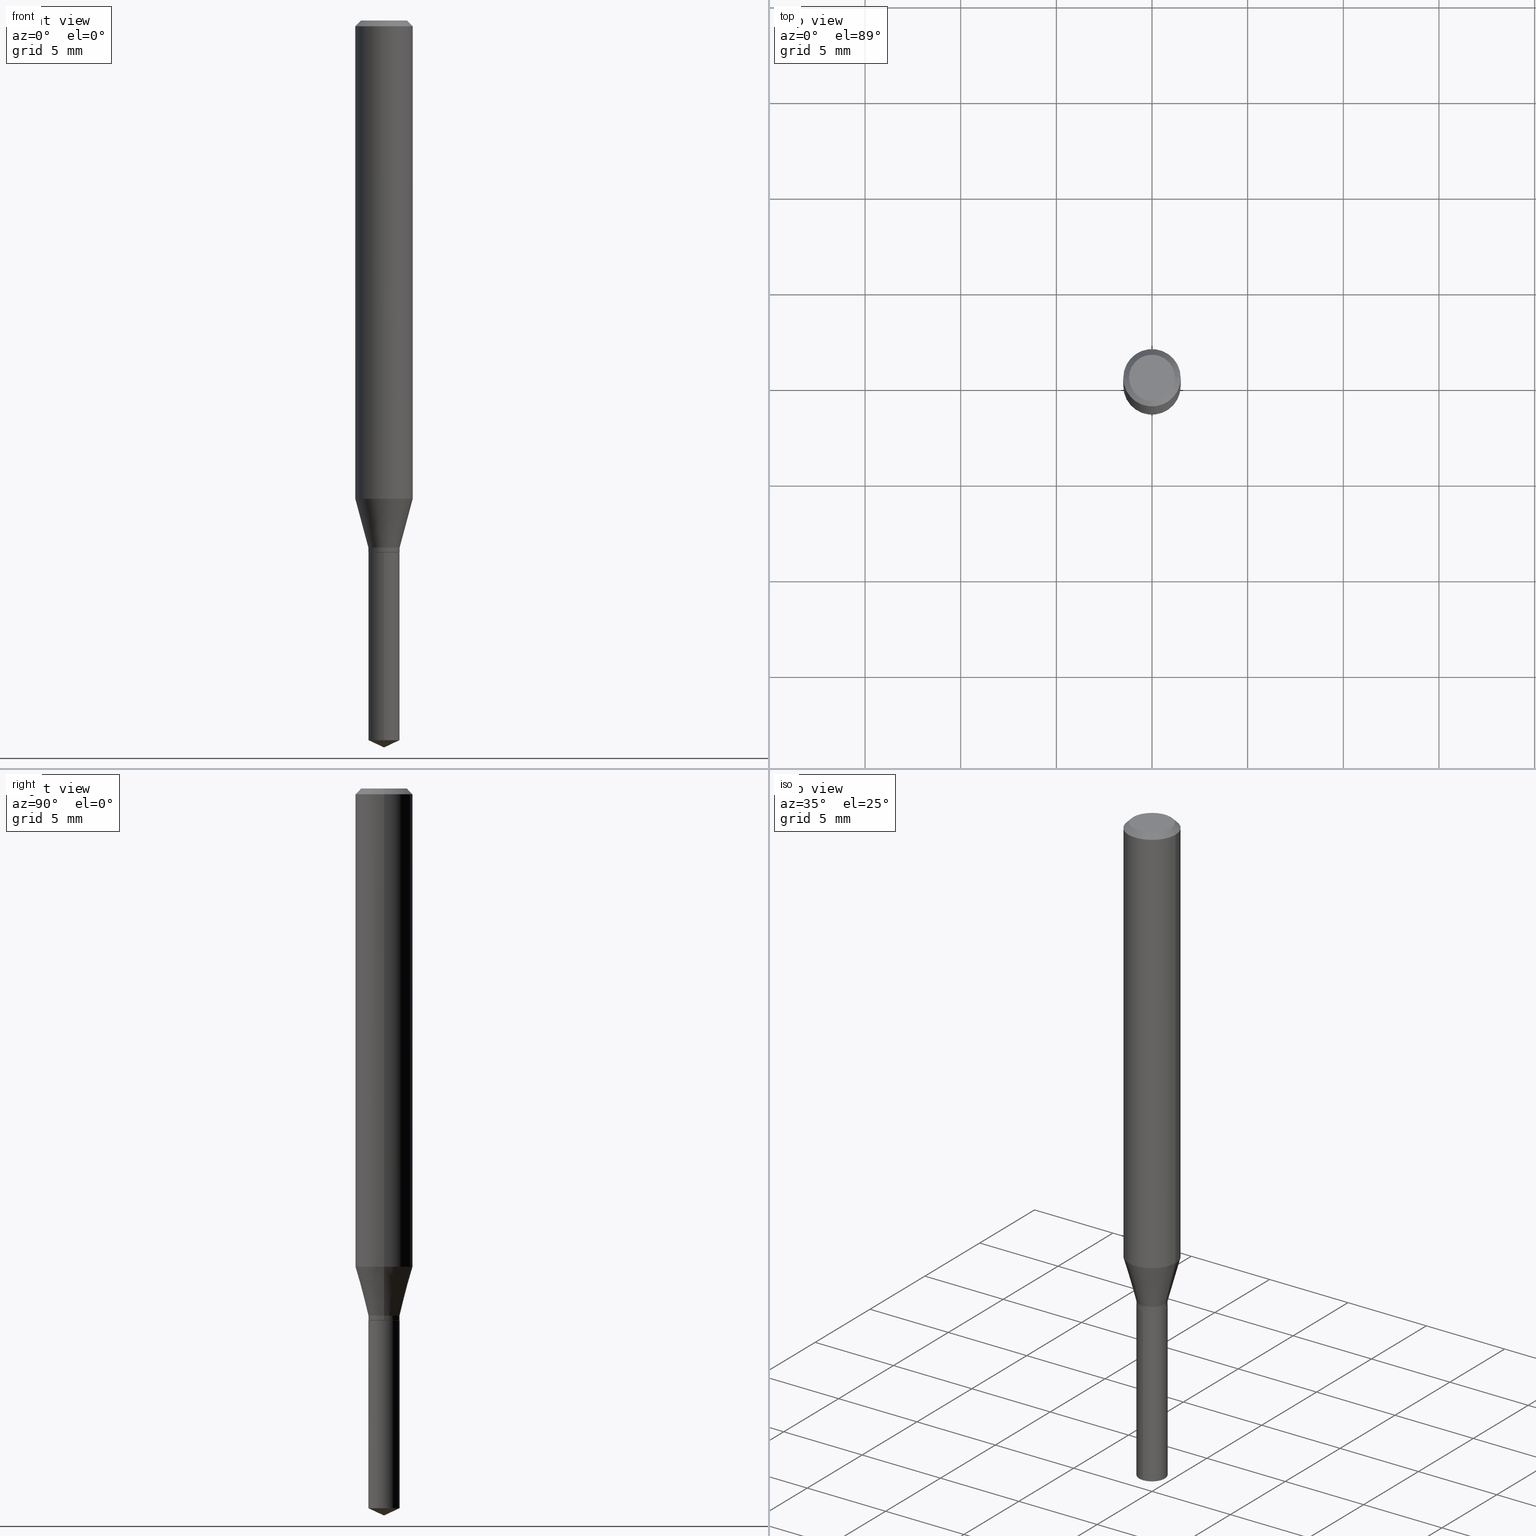
[diagram: canonical four-view strip — front | top / right | iso, engineering-drawing reading convention]
A machine part, canonical four-view strip (front | top / right | iso — engineering-drawing reading convention). The complete STEP part file that produces these views, byte-faithful:
ISO-10303-21;
HEADER;
FILE_DESCRIPTION (( 'STEP AP203' ),
    '1' );
FILE_NAME ('07900.STEP',
    '2024-04-24T05:42:37',
    ( '' ),
    ( '' ),
    'SwSTEP 2.0',
    'SolidWorks 2023',
    '' );
FILE_SCHEMA (( 'CONFIG_CONTROL_DESIGN' ));
ENDSEC;

DATA;
#1 = PERSON_AND_ORGANIZATION ( #28, #442 ) ;
#2 = APPLICATION_PROTOCOL_DEFINITION ( 'international standard', 'config_control_design', 1994, #230 ) ;
#3 = VERTEX_POINT ( 'NONE', #176 ) ;
#4 = VECTOR ( 'NONE', #262, 39.37007874015748143 ) ;
#5 = CC_DESIGN_APPROVAL ( #411, ( #26 ) ) ;
#6 = EDGE_LOOP ( 'NONE', ( #171, #174 ) ) ;
#7 = CARTESIAN_POINT ( 'NONE',  ( -0.03159999999999999615, -3.594245593689520187E-15, -1.094500000000000028 ) ) ;
#8 = ORIENTED_EDGE ( 'NONE', *, *, #32, .T. ) ;
#9 = ORIENTED_EDGE ( 'NONE', *, *, #295, .F. ) ;
#10 = APPROVAL_DATE_TIME ( #356, #143 ) ;
#11 = AXIS2_PLACEMENT_3D ( 'NONE', #386, #169, #316 ) ;
#12 = CARTESIAN_POINT ( 'NONE',  ( -0.03209999999999999659, -3.575710126423672121E-15, -1.084899999999999975 ) ) ;
#13 = CC_DESIGN_APPROVAL ( #143, ( #124 ) ) ;
#14 = MANIFOLD_SOLID_BREP ( 'Body-Move/Copy2[1]', #234 ) ;
#15 = DIRECTION ( 'NONE',  ( -2.445468806185136597E-29, 3.491481338843145583E-15, 1.000000000000000000 ) ) ;
#16 = LINE ( 'NONE', #327, #204 ) ;
#17 = ORIENTED_EDGE ( 'NONE', *, *, #416, .T. ) ;
#18 = APPROVAL_ROLE ( '' ) ;
#19 = FACE_OUTER_BOUND ( 'NONE', #241, .T. ) ;
#20 = DIRECTION ( 'NONE',  ( 1.000000000000000000, -6.982962677686263555E-15, 0.000000000000000000 ) ) ;
#21 = VECTOR ( 'NONE', #406, 39.37007874015748854 ) ;
#22 = CYLINDRICAL_SURFACE ( 'NONE', #388, 0.05905000000000006077 ) ;
#23 = AXIS2_PLACEMENT_3D ( 'NONE', #142, #59, #362 ) ;
#24 = LOCAL_TIME ( 1, 42, 37.00000000000000000, #98 ) ;
#25 = CARTESIAN_POINT ( 'NONE',  ( 0.05905000000000006077, -4.123439461173744764E-16, 2.879382386107503023E-30 ) ) ;
#26 = PRODUCT_DEFINITION ( 'UNKNOWN', '', #251, #220 ) ;
#27 = DIRECTION ( 'NONE',  ( -2.445468806185136877E-29, 3.491481338843145188E-15, 1.000000000000000000 ) ) ;
#28 = PERSON ( 'UNSPECIFIED', 'UNSPECIFIED', 'UNSPECIFIED', ('UNSPECIFIED'), ('UNSPECIFIED'), ('UNSPECIFIED') ) ;
#29 = PLANE ( 'NONE',  #70 ) ;
#30 = CIRCLE ( 'NONE', #309, 0.03209999999999999659 ) ;
#31 = LOCAL_TIME ( 1, 42, 37.00000000000000000, #402 ) ;
#32 = EDGE_CURVE ( 'NONE', #361, #353, #458, .T. ) ;
#33 = DIRECTION ( 'NONE',  ( -6.982962677686267499E-15, -1.000000000000000000, 3.520397390770466886E-15 ) ) ;
#34 = CARTESIAN_POINT ( 'NONE',  ( -2.241531019537023721E-16, -0.03210000000000381992, -1.094499999999999806 ) ) ;
#35 = CARTESIAN_POINT ( 'NONE',  ( 0.000000000000000000, 0.000000000000000000, 0.000000000000000000 ) ) ;
#36 = ORIENTED_EDGE ( 'NONE', *, *, #314, .T. ) ;
#37 = CARTESIAN_POINT ( 'NONE',  ( 2.407126865030695600E-29, -3.436739208541926354E-15, -0.9843212307360184044 ) ) ;
#38 = DIRECTION ( 'NONE',  ( 1.000000000000000000, -6.982962677686266711E-15, 0.000000000000000000 ) ) ;
#39 = AXIS2_PLACEMENT_3D ( 'NONE', #324, #107, #434 ) ;
#40 = ORIENTED_EDGE ( 'NONE', *, *, #395, .F. ) ;
#41 = APPROVAL_STATUS ( 'not_yet_approved' ) ;
#42 = ADVANCED_BREP_SHAPE_REPRESENTATION ( '07900', ( #14, #188, #451 ), #164 ) ;
#43 = ORIENTED_EDGE ( 'NONE', *, *, #300, .T. ) ;
#44 = CARTESIAN_POINT ( 'NONE',  ( -0.05905000000000011628, -3.017163723075586861E-15, -0.9843212307360184044 ) ) ;
#45 = DIRECTION ( 'NONE',  ( 6.982962677686265922E-15, 1.000000000000000000, -3.491479321953280158E-15 ) ) ;
#46 = MECHANICAL_CONTEXT ( 'NONE', #340, 'mechanical' ) ;
#47 = AXIS2_PLACEMENT_3D ( 'NONE', #341, #147, #377 ) ;
#48 = APPROVAL_PERSON_ORGANIZATION ( #1, #411, #197 ) ;
#49 = EDGE_CURVE ( 'NONE', #467, #3, #471, .T. ) ;
#50 = DIRECTION ( 'NONE',  ( -6.982962677686265133E-15, -1.000000000000000000, 4.255214943402279650E-15 ) ) ;
#51 = PRODUCT_RELATED_PRODUCT_CATEGORY ( 'detail', '', ( #153 ) ) ;
#52 = EDGE_LOOP ( 'NONE', ( #246, #43, #125, #40 ) ) ;
#53 = PLANE ( 'NONE',  #480 ) ;
#54 = EDGE_CURVE ( 'NONE', #315, #248, #317, .T. ) ;
#55 = ORIENTED_EDGE ( 'NONE', *, *, #416, .F. ) ;
#56 = CALENDAR_DATE ( 2024, 24, 4 ) ;
#57 = CIRCLE ( 'NONE', #47, 0.03209999999999999659 ) ;
#58 = CONICAL_SURFACE ( 'NONE', #460, 84.42940631927402251, 1.134464013796314452 ) ;
#59 = DIRECTION ( 'NONE',  ( -2.445470214571802116E-29, 3.491479321953280158E-15, 1.000000000000000000 ) ) ;
#60 = CC_DESIGN_SECURITY_CLASSIFICATION ( #124, ( #251 ) ) ;
#61 = CC_DESIGN_PERSON_AND_ORGANIZATION_ASSIGNMENT ( #67, #132, ( #251 ) ) ;
#62 = DIRECTION ( 'NONE',  ( -2.445468806185136597E-29, 3.491481338843145583E-15, 1.000000000000000000 ) ) ;
#63 = DIRECTION ( 'NONE',  ( -2.445468806185136597E-29, 3.491481338843145583E-15, 1.000000000000000000 ) ) ;
#64 = ORIENTED_EDGE ( 'NONE', *, *, #198, .T. ) ;
#65 = DATE_AND_TIME ( #56, #31 ) ;
#66 = CARTESIAN_POINT ( 'NONE',  ( -0.05904999999999999832, 3.711095515056362547E-16, -0.01181000000000007218 ) ) ;
#67 = PERSON_AND_ORGANIZATION ( #28, #442 ) ;
#68 = EDGE_CURVE ( 'NONE', #459, #112, #152, .T. ) ;
#69 = DIRECTION ( 'NONE',  ( 1.000000000000000000, -6.982962677686263555E-15, 0.000000000000000000 ) ) ;
#70 = AXIS2_PLACEMENT_3D ( 'NONE', #190, #231, #379 ) ;
#71 = DIRECTION ( 'NONE',  ( 2.445468806185136597E-29, -3.491481338843145583E-15, -1.000000000000000000 ) ) ;
#72 = FACE_OUTER_BOUND ( 'NONE', #393, .T. ) ;
#73 = EDGE_CURVE ( 'NONE', #91, #254, #413, .T. ) ;
#74 = CARTESIAN_POINT ( 'NONE',  ( 2.280842181790283737E-16, 0.03209999999999482712, -1.481131524173224578 ) ) ;
#75 = CIRCLE ( 'NONE', #351, 0.05905000000000011628 ) ;
#76 = CC_DESIGN_DATE_AND_TIME_ASSIGNMENT ( #65, #216, ( #124 ) ) ;
#77 = CARTESIAN_POINT ( 'NONE',  ( 2.407126865030695600E-29, -3.436739208541926354E-15, -0.9843212307360184044 ) ) ;
#78 = DIRECTION ( 'NONE',  ( -1.000000000000000000, 6.982962677686266711E-15, 0.000000000000000000 ) ) ;
#79 = DIRECTION ( 'NONE',  ( 1.000000000000000000, -6.982962677686266711E-15, 4.876176775795935793E-29 ) ) ;
#80 = VERTEX_POINT ( 'NONE', #252 ) ;
#81 = CARTESIAN_POINT ( 'NONE',  ( -2.241531019537023721E-16, -0.03210000000000381992, -1.094499999999999806 ) ) ;
#82 = APPROVAL ( #162, 'UNSPECIFIED' ) ;
#83 = CONICAL_SURFACE ( 'NONE', #358, 0.03209999999999999659, 0.2617993877991498519 ) ;
#84 = AXIS2_PLACEMENT_3D ( 'NONE', #419, #312, #465 ) ;
#85 = VERTEX_POINT ( 'NONE', #306 ) ;
#86 = PERSON_AND_ORGANIZATION ( #28, #442 ) ;
#87 = ORIENTED_EDGE ( 'NONE', *, *, #219, .T. ) ;
#88 = DIRECTION ( 'NONE',  ( -2.445470214571802396E-29, 3.491479321953280158E-15, 1.000000000000000000 ) ) ;
#89 = CARTESIAN_POINT ( 'NONE',  ( -0.03209999999999999659, -3.559823886331936833E-15, -1.084899999999999975 ) ) ;
#90 = EDGE_CURVE ( 'NONE', #478, #3, #137, .T. ) ;
#91 = VERTEX_POINT ( 'NONE', #120 ) ;
#92 = DIRECTION ( 'NONE',  ( 0.000000000000000000, 0.000000000000000000, 1.000000000000000000 ) ) ;
#93 = DIRECTION ( 'NONE',  ( 1.000000000000000000, -6.982962677686263555E-15, 0.000000000000000000 ) ) ;
#94 = ADVANCED_FACE ( 'NONE', ( #273 ), #382, .T. ) ;
#95 = CIRCLE ( 'NONE', #186, 0.03209999999999998965 ) ;
#96 = CC_DESIGN_APPROVAL ( #82, ( #251 ) ) ;
#97 =( NAMED_UNIT ( * ) PLANE_ANGLE_UNIT ( ) SI_UNIT ( $, .RADIAN. ) );
#98 = COORDINATED_UNIVERSAL_TIME_OFFSET ( 5, 0, .BEHIND. ) ;
#99 = PERSON_AND_ORGANIZATION_ROLE ( 'design_supplier' ) ;
#100 = DIRECTION ( 'NONE',  ( 1.000000000000000000, -6.982962677686263555E-15, 0.000000000000000000 ) ) ;
#101 = ORIENTED_EDGE ( 'NONE', *, *, #247, .T. ) ;
#102 = CONICAL_SURFACE ( 'NONE', #84, 84.42940631927402251, 1.134464013796314452 ) ;
#103 = FACE_OUTER_BOUND ( 'NONE', #223, .T. ) ;
#104 = ORIENTED_EDGE ( 'NONE', *, *, #392, .T. ) ;
#105 = COORDINATED_UNIVERSAL_TIME_OFFSET ( 5, 0, .BEHIND. ) ;
#106 = CARTESIAN_POINT ( 'NONE',  ( 3.622061484749750014E-29, -5.171342297229916227E-15, -1.481131524173224578 ) ) ;
#107 = DIRECTION ( 'NONE',  ( -2.445468806185136597E-29, 3.491481338843145583E-15, 1.000000000000000000 ) ) ;
#108 = PRODUCT_DEFINITION_SHAPE ( 'NONE', 'NONE',  #26 ) ;
#109 = AXIS2_PLACEMENT_3D ( 'NONE', #192, #281, #38 ) ;
#110 = FACE_OUTER_BOUND ( 'NONE', #199, .T. ) ;
#111 = VECTOR ( 'NONE', #113, 39.37007874015748143 ) ;
#112 = VERTEX_POINT ( 'NONE', #310 ) ;
#113 = DIRECTION ( 'NONE',  ( -2.445470214571802396E-29, 3.491479321953280158E-15, 1.000000000000000000 ) ) ;
#114 = CARTESIAN_POINT ( 'NONE',  ( -9.261968845786000133E-28, 1.322362114038720264E-13, 37.87397874015748300 ) ) ;
#115 = DIRECTION ( 'NONE',  ( -2.445470214571802116E-29, 3.491479321953280158E-15, 1.000000000000000000 ) ) ;
#116 = DIRECTION ( 'NONE',  ( -2.445468806185136597E-29, 3.491481338843145583E-15, 1.000000000000000000 ) ) ;
#117 = DIRECTION ( 'NONE',  ( -6.982962677686265133E-15, -1.000000000000000000, 4.255214943402279650E-15 ) ) ;
#118 = ORIENTED_EDGE ( 'NONE', *, *, #331, .F. ) ;
#119 = DIRECTION ( 'NONE',  ( -2.445470214571802116E-29, 3.491479321953280158E-15, 1.000000000000000000 ) ) ;
#120 = CARTESIAN_POINT ( 'NONE',  ( 0.03209999999999999659, -4.012061206464657274E-15, -1.084899999999999975 ) ) ;
#121 = VERTEX_POINT ( 'NONE', #34 ) ;
#122 =( NAMED_UNIT ( * ) SI_UNIT ( $, .STERADIAN. ) SOLID_ANGLE_UNIT ( ) );
#123 = CIRCLE ( 'NONE', #257, 0.05905000000000011628 ) ;
#124 = SECURITY_CLASSIFICATION ( '', '', #211 ) ;
#125 = ORIENTED_EDGE ( 'NONE', *, *, #331, .T. ) ;
#126 = APPROVAL_PERSON_ORGANIZATION ( #349, #82, #463 ) ;
#127 = ADVANCED_FACE ( 'NONE', ( #195 ), #381, .F. ) ;
#128 = DIRECTION ( 'NONE',  ( 1.000000000000000000, -6.982962677686266711E-15, 4.876185090822587894E-29 ) ) ;
#129 = FACE_OUTER_BOUND ( 'NONE', #420, .T. ) ;
#130 = AXIS2_PLACEMENT_3D ( 'NONE', #187, #149, #334 ) ;
#131 = ORIENTED_EDGE ( 'NONE', *, *, #209, .F. ) ;
#132 = PERSON_AND_ORGANIZATION_ROLE ( 'creator' ) ;
#133 = LINE ( 'NONE', #293, #318 ) ;
#134 = DIRECTION ( 'NONE',  ( -2.445468806185136877E-29, 3.491481338843145188E-15, 1.000000000000000000 ) ) ;
#135 = DIRECTION ( 'NONE',  ( -0.7071067811864237829, 7.493145998869907665E-15, 0.7071067811866712516 ) ) ;
#136 = ORIENTED_EDGE ( 'NONE', *, *, #166, .T. ) ;
#137 = CIRCLE ( 'NONE', #109, 0.05904999999999999832 ) ;
#138 = APPROVAL_STATUS ( 'not_yet_approved' ) ;
#139 = VECTOR ( 'NONE', #294, 39.37007874015748143 ) ;
#140 = LOCAL_TIME ( 1, 42, 37.00000000000000000, #422 ) ;
#141 = CARTESIAN_POINT ( 'NONE',  ( 0.03159999999999999615, -4.042087945978708713E-15, -1.094500000000000028 ) ) ;
#142 = CARTESIAN_POINT ( 'NONE',  ( 2.676565608369631794E-29, -3.821426325363822773E-15, -1.094499999999999806 ) ) ;
#143 = APPROVAL ( #138, 'UNSPECIFIED' ) ;
#144 = DIRECTION ( 'NONE',  ( 2.438088387897960049E-29, -3.491481338843145188E-15, -1.000000000000000000 ) ) ;
#145 = EDGE_CURVE ( 'NONE', #254, #467, #425, .T. ) ;
#146 = ORIENTED_EDGE ( 'NONE', *, *, #225, .F. ) ;
#147 = DIRECTION ( 'NONE',  ( -2.445470214571802116E-29, 3.491479321953280158E-15, 1.000000000000000000 ) ) ;
#148 = VECTOR ( 'NONE', #27, 39.37007874015748143 ) ;
#149 = DIRECTION ( 'NONE',  ( -2.445468806185136597E-29, 3.491481338843145583E-15, 1.000000000000000000 ) ) ;
#150 = CARTESIAN_POINT ( 'NONE',  ( 2.653089107830254266E-29, -3.787908104510928327E-15, -1.084899999999999975 ) ) ;
#151 = DIRECTION ( 'NONE',  ( -2.445470214571802116E-29, 3.491479321953280158E-15, 1.000000000000000000 ) ) ;
#152 = CIRCLE ( 'NONE', #487, 0.03159999999999999615 ) ;
#153 = PRODUCT ( '07900', '07900', '', ( #46 ) ) ;
#154 = CIRCLE ( 'NONE', #367, 0.03209999999999999659 ) ;
#155 = EDGE_CURVE ( 'NONE', #271, #274, #447, .T. ) ;
#156 = ORIENTED_EDGE ( 'NONE', *, *, #475, .F. ) ;
#157 = FACE_OUTER_BOUND ( 'NONE', #304, .T. ) ;
#158 = CARTESIAN_POINT ( 'NONE',  ( 0.000000000000000000, 0.000000000000000000, 0.000000000000000000 ) ) ;
#159 = ADVANCED_FACE ( 'NONE', ( #470 ), #83, .T. ) ;
#160 = ORIENTED_EDGE ( 'NONE', *, *, #54, .F. ) ;
#161 = ORIENTED_EDGE ( 'NONE', *, *, #90, .F. ) ;
#162 = APPROVAL_STATUS ( 'not_yet_approved' ) ;
#163 = ADVANCED_FACE ( 'NONE', ( #19 ), #278, .T. ) ;
#164 =( GEOMETRIC_REPRESENTATION_CONTEXT ( 3 ) GLOBAL_UNCERTAINTY_ASSIGNED_CONTEXT ( ( #383 ) ) GLOBAL_UNIT_ASSIGNED_CONTEXT ( ( #391, #97, #122 ) ) REPRESENTATION_CONTEXT ( 'NONE', 'WORKASPACE' ) );
#165 = ORIENTED_EDGE ( 'NONE', *, *, #54, .T. ) ;
#166 = EDGE_CURVE ( 'NONE', #112, #459, #213, .T. ) ;
#167 = EDGE_LOOP ( 'NONE', ( #8, #345 ) ) ;
#168 = PERSON_AND_ORGANIZATION_ROLE ( 'creator' ) ;
#169 = DIRECTION ( 'NONE',  ( -2.445468806185136597E-29, 3.491481338843145583E-15, 1.000000000000000000 ) ) ;
#170 = EDGE_CURVE ( 'NONE', #459, #315, #432, .T. ) ;
#171 = ORIENTED_EDGE ( 'NONE', *, *, #166, .F. ) ;
#172 = SHAPE_DEFINITION_REPRESENTATION ( #108, #42 ) ;
#173 = CARTESIAN_POINT ( 'NONE',  ( -2.241531019536929551E-16, -0.03210000000000517301, -1.481131524173224578 ) ) ;
#174 = ORIENTED_EDGE ( 'NONE', *, *, #68, .F. ) ;
#175 = LINE ( 'NONE', #141, #269 ) ;
#176 = CARTESIAN_POINT ( 'NONE',  ( -0.05904999999999999832, -1.319411316110491759E-15, -0.01181000000000007218 ) ) ;
#177 = DIMENSIONAL_EXPONENTS ( 1.000000000000000000, 0.000000000000000000, 0.000000000000000000, 0.000000000000000000, 0.000000000000000000, 0.000000000000000000, 0.000000000000000000 ) ;
#178 = DIRECTION ( 'NONE',  ( -2.445468806185136597E-29, 3.491481338843145583E-15, 1.000000000000000000 ) ) ;
#179 = VECTOR ( 'NONE', #485, 39.37007874015748854 ) ;
#180 = DIRECTION ( 'NONE',  ( -0.7071067811865453523, 2.468850131082234184E-15, -0.7071067811865496822 ) ) ;
#181 = ADVANCED_FACE ( 'NONE', ( #357 ), #53, .F. ) ;
#182 = DIRECTION ( 'NONE',  ( -2.445468806185136597E-29, 3.491481338843145583E-15, 1.000000000000000000 ) ) ;
#183 = ORIENTED_EDGE ( 'NONE', *, *, #219, .F. ) ;
#184 = CARTESIAN_POINT ( 'NONE',  ( 2.676565608369631794E-29, -3.821426325363822773E-15, -1.094499999999999806 ) ) ;
#185 = CIRCLE ( 'NONE', #23, 0.03209999999999999659 ) ;
#186 = AXIS2_PLACEMENT_3D ( 'NONE', #222, #364, #263 ) ;
#187 = CARTESIAN_POINT ( 'NONE',  ( 2.653089107830254266E-29, -3.787908104510928327E-15, -1.084899999999999975 ) ) ;
#188 = MANIFOLD_SOLID_BREP ( 'Body-Move/Copy2[2]', #242 ) ;
#189 = CYLINDRICAL_SURFACE ( 'NONE', #430, 0.03209999999999999659 ) ;
#190 = CARTESIAN_POINT ( 'NONE',  ( -6.270913029850894293E-30, -8.552451054897899480E-15, -1.094500000000000028 ) ) ;
#191 = EDGE_CURVE ( 'NONE', #361, #3, #399, .T. ) ;
#192 = CARTESIAN_POINT ( 'NONE',  ( 2.888098660104664204E-31, -4.123439461173780263E-17, -0.01181000000000007218 ) ) ;
#193 = ORIENTED_EDGE ( 'NONE', *, *, #244, .F. ) ;
#194 = DIRECTION ( 'NONE',  ( -2.445468806185136597E-29, 3.491481338843145583E-15, 1.000000000000000000 ) ) ;
#195 = FACE_OUTER_BOUND ( 'NONE', #409, .T. ) ;
#196 = ORIENTED_EDGE ( 'NONE', *, *, #155, .T. ) ;
#197 = APPROVAL_ROLE ( '' ) ;
#198 = EDGE_CURVE ( 'NONE', #85, #121, #185, .T. ) ;
#199 = EDGE_LOOP ( 'NONE', ( #146, #165, #104, #311 ) ) ;
#200 = ORIENTED_EDGE ( 'NONE', *, *, #170, .T. ) ;
#201 = CC_DESIGN_PERSON_AND_ORGANIZATION_ASSIGNMENT ( #202, #168, ( #26 ) ) ;
#202 = PERSON_AND_ORGANIZATION ( #28, #442 ) ;
#203 = AXIS2_PLACEMENT_3D ( 'NONE', #436, #62, #258 ) ;
#204 = VECTOR ( 'NONE', #474, 39.37007874015748143 ) ;
#205 = ORIENTED_EDGE ( 'NONE', *, *, #448, .T. ) ;
#206 = CARTESIAN_POINT ( 'NONE',  ( 0.05904999999999999832, -4.535783407291118600E-16, -0.01181000000000007218 ) ) ;
#207 = ORIENTED_EDGE ( 'NONE', *, *, #32, .F. ) ;
#208 = CARTESIAN_POINT ( 'NONE',  ( 8.265746106709734507E-48, -1.180129479067563789E-33, -3.380025165646692144E-19 ) ) ;
#209 = EDGE_CURVE ( 'NONE', #353, #478, #16, .T. ) ;
#210 = ORIENTED_EDGE ( 'NONE', *, *, #484, .F. ) ;
#211 = SECURITY_CLASSIFICATION_LEVEL ( 'unclassified' ) ;
#212 = CARTESIAN_POINT ( 'NONE',  ( 0.000000000000000000, 0.000000000000000000, 0.000000000000000000 ) ) ;
#213 = CIRCLE ( 'NONE', #481, 0.03159999999999999615 ) ;
#214 = ORIENTED_EDGE ( 'NONE', *, *, #49, .F. ) ;
#215 = AXIS2_PLACEMENT_3D ( 'NONE', #212, #178, #330 ) ;
#216 = DATE_TIME_ROLE ( 'classification_date' ) ;
#217 = FACE_OUTER_BOUND ( 'NONE', #238, .T. ) ;
#218 = ORIENTED_EDGE ( 'NONE', *, *, #90, .T. ) ;
#219 = EDGE_CURVE ( 'NONE', #80, #478, #226, .T. ) ;
#220 = DESIGN_CONTEXT ( 'detailed design', #230, 'design' ) ;
#221 = PERSON_AND_ORGANIZATION ( #28, #442 ) ;
#222 = CARTESIAN_POINT ( 'NONE',  ( 2.675342873966538993E-29, -3.819680584694400481E-15, -1.093999999999999861 ) ) ;
#223 = EDGE_LOOP ( 'NONE', ( #319, #363, #161, #183 ) ) ;
#224 = PERSON_AND_ORGANIZATION_ROLE ( 'classification_officer' ) ;
#225 = EDGE_CURVE ( 'NONE', #315, #254, #366, .T. ) ;
#226 = LINE ( 'NONE', #25, #4 ) ;
#227 = APPROVAL_DATE_TIME ( #326, #82 ) ;
#228 = AXIS2_PLACEMENT_3D ( 'NONE', #150, #410, #301 ) ;
#229 = CARTESIAN_POINT ( 'NONE',  ( -0.03159999999999999615, -3.596894820863631388E-15, -1.094500000000000028 ) ) ;
#230 = APPLICATION_CONTEXT ( 'configuration controlled 3d designs of mechanical parts and assemblies' ) ;
#231 = DIRECTION ( 'NONE',  ( -2.438088387897960049E-29, 3.491481338843145188E-15, 1.000000000000000000 ) ) ;
#232 = CC_DESIGN_PERSON_AND_ORGANIZATION_ASSIGNMENT ( #369, #224, ( #124 ) ) ;
#233 = DIRECTION ( 'NONE',  ( 1.000000000000000000, -6.982962677686266711E-15, 4.876176775795935793E-29 ) ) ;
#234 = CLOSED_SHELL ( 'NONE', ( #320, #457, #302, #333, #127 ) ) ;
#235 = CARTESIAN_POINT ( 'NONE',  ( -0.03209999999999998965, -3.575710126423672121E-15, -1.093999999999999861 ) ) ;
#236 = ADVANCED_FACE ( 'NONE', ( #217 ), #473, .T. ) ;
#237 = CARTESIAN_POINT ( 'NONE',  ( -0.04724000000000000421, 3.504923541997677355E-16, -3.380025165670481712E-19 ) ) ;
#238 = EDGE_LOOP ( 'NONE', ( #404, #464, #385, #160 ) ) ;
#239 = ADVANCED_FACE ( 'NONE', ( #103 ), #22, .T. ) ;
#240 = DIRECTION ( 'NONE',  ( -2.445468806185136597E-29, 3.491481338843145583E-15, 1.000000000000000000 ) ) ;
#241 = EDGE_LOOP ( 'NONE', ( #131, #207, #443, #205 ) ) ;
#242 = CLOSED_SHELL ( 'NONE', ( #337, #360, #239, #159, #374, #253, #354, #94, #163, #181, #380, #236 ) ) ;
#243 = CONICAL_SURFACE ( 'NONE', #228, 0.03209999999999999659, 0.2617993877991498519 ) ;
#244 = EDGE_CURVE ( 'NONE', #112, #248, #175, .T. ) ;
#245 = DIRECTION ( 'NONE',  ( 2.445470214571801836E-29, -3.491479321953280158E-15, -1.000000000000000000 ) ) ;
#246 = ORIENTED_EDGE ( 'NONE', *, *, #145, .F. ) ;
#247 = EDGE_CURVE ( 'NONE', #248, #315, #95, .T. ) ;
#248 = VERTEX_POINT ( 'NONE', #296 ) ;
#249 = DATE_TIME_ROLE ( 'creation_date' ) ;
#250 = DATE_AND_TIME ( #424, #140 ) ;
#251 = PRODUCT_DEFINITION_FORMATION_WITH_SPECIFIED_SOURCE ( 'ANY', '', #153, .NOT_KNOWN. ) ;
#252 = CARTESIAN_POINT ( 'NONE',  ( 0.05905000000000011628, -3.849083154659301274E-15, -0.9843212307360184044 ) ) ;
#253 = ADVANCED_FACE ( 'NONE', ( #110 ), #394, .T. ) ;
#254 = VERTEX_POINT ( 'NONE', #12 ) ;
#255 = DIRECTION ( 'NONE',  ( -1.000000000000000000, 6.982962677686265922E-15, -4.876176775795935793E-29 ) ) ;
#256 = AXIS2_PLACEMENT_3D ( 'NONE', #292, #15, #322 ) ;
#257 = AXIS2_PLACEMENT_3D ( 'NONE', #77, #378, #303 ) ;
#258 = DIRECTION ( 'NONE',  ( 1.000000000000000000, -6.982962677686265133E-15, 0.000000000000000000 ) ) ;
#259 = DIRECTION ( 'NONE',  ( 1.000000000000000000, -6.982962677686266711E-15, 4.876176775795935793E-29 ) ) ;
#260 = CARTESIAN_POINT ( 'NONE',  ( 2.676565608369632355E-29, -3.821426325363822773E-15, -1.094500000000000028 ) ) ;
#261 = CALENDAR_DATE ( 2024, 24, 4 ) ;
#262 = DIRECTION ( 'NONE',  ( -2.445468806185136877E-29, 3.491481338843145188E-15, 1.000000000000000000 ) ) ;
#263 = DIRECTION ( 'NONE',  ( 1.000000000000000000, -6.982962677686265133E-15, 0.000000000000000000 ) ) ;
#264 = CIRCLE ( 'NONE', #297, 0.04724000000000000421 ) ;
#265 = CARTESIAN_POINT ( 'NONE',  ( 2.280842181790188581E-16, 0.03209999999999617326, -1.094500000000000028 ) ) ;
#266 = DIRECTION ( 'NONE',  ( -6.982962677686265133E-15, -1.000000000000000000, 4.255214943402279650E-15 ) ) ;
#267 = DIRECTION ( 'NONE',  ( -6.982962677686265133E-15, -1.000000000000000000, 0.000000000000000000 ) ) ;
#268 = AXIS2_PLACEMENT_3D ( 'NONE', #415, #245, #45 ) ;
#269 = VECTOR ( 'NONE', #439, 39.37007874015748143 ) ;
#270 = LINE ( 'NONE', #299, #335 ) ;
#271 = VERTEX_POINT ( 'NONE', #321 ) ;
#272 = CARTESIAN_POINT ( 'NONE',  ( 0.03209999999999999659, -2.241531019537291441E-16, 1.565252745030495280E-30 ) ) ;
#273 = FACE_OUTER_BOUND ( 'NONE', #396, .T. ) ;
#274 = VERTEX_POINT ( 'NONE', #173 ) ;
#275 = DIRECTION ( 'NONE',  ( -2.445468806185136597E-29, 3.491481338843145583E-15, 1.000000000000000000 ) ) ;
#276 = EDGE_CURVE ( 'NONE', #271, #347, #133, .T. ) ;
#277 = APPROVAL_DATE_TIME ( #456, #411 ) ;
#278 = CONICAL_SURFACE ( 'NONE', #421, 0.05904999999999999832, 0.7853981633974452814 ) ;
#279 = CC_DESIGN_DATE_AND_TIME_ASSIGNMENT ( #250, #249, ( #26 ) ) ;
#280 = VECTOR ( 'NONE', #135, 39.37007874015748143 ) ;
#281 = DIRECTION ( 'NONE',  ( -2.445468806185136597E-29, 3.491481338843145583E-15, 1.000000000000000000 ) ) ;
#282 = EDGE_LOOP ( 'NONE', ( #286, #36, #55, #210 ) ) ;
#283 = COORDINATED_UNIVERSAL_TIME_OFFSET ( 5, 0, .BEHIND. ) ;
#284 = ORIENTED_EDGE ( 'NONE', *, *, #209, .T. ) ;
#285 = CARTESIAN_POINT ( 'NONE',  ( 2.653089107830254266E-29, -3.787908104510928327E-15, -1.084899999999999975 ) ) ;
#286 = ORIENTED_EDGE ( 'NONE', *, *, #295, .T. ) ;
#287 = ORIENTED_EDGE ( 'NONE', *, *, #73, .T. ) ;
#288 = EDGE_CURVE ( 'NONE', #347, #274, #154, .T. ) ;
#289 = DIRECTION ( 'NONE',  ( -1.000000000000000000, 6.982962677686266711E-15, 0.000000000000000000 ) ) ;
#290 = CARTESIAN_POINT ( 'NONE',  ( -0.03209999999999999659, 2.280842181789921354E-16, -1.578978163971824635E-30 ) ) ;
#291 = CC_DESIGN_PERSON_AND_ORGANIZATION_ASSIGNMENT ( #86, #461, ( #153 ) ) ;
#292 = CARTESIAN_POINT ( 'NONE',  ( 8.265746106709734507E-48, -1.180129479067563789E-33, -3.380025165646692144E-19 ) ) ;
#293 = CARTESIAN_POINT ( 'NONE',  ( 3.658668015054778287E-29, -5.223602213574301462E-15, -1.496099999999999985 ) ) ;
#294 = DIRECTION ( 'NONE',  ( -2.445468806185136877E-29, 3.491481338843145188E-15, 1.000000000000000000 ) ) ;
#295 = EDGE_CURVE ( 'NONE', #274, #347, #57, .T. ) ;
#296 = CARTESIAN_POINT ( 'NONE',  ( 0.03209999999999998965, -4.043833686648129428E-15, -1.093999999999999861 ) ) ;
#297 = AXIS2_PLACEMENT_3D ( 'NONE', #208, #275, #128 ) ;
#298 = DIRECTION ( 'NONE',  ( -2.445470214571802116E-29, 3.491479321953280158E-15, 1.000000000000000000 ) ) ;
#299 = CARTESIAN_POINT ( 'NONE',  ( 0.03209999999999999659, -4.012061206464657274E-15, -1.084899999999999975 ) ) ;
#300 = EDGE_CURVE ( 'NONE', #254, #91, #329, .T. ) ;
#301 = DIRECTION ( 'NONE',  ( 1.000000000000000000, -6.982962677686263555E-15, 0.000000000000000000 ) ) ;
#302 = ADVANCED_FACE ( 'NONE', ( #489 ), #58, .T. ) ;
#303 = DIRECTION ( 'NONE',  ( 1.000000000000000000, -6.982962677686266711E-15, 0.000000000000000000 ) ) ;
#304 = EDGE_LOOP ( 'NONE', ( #101, #466, #325, #352 ) ) ;
#305 = DIRECTION ( 'NONE',  ( 1.000000000000000000, -6.982962677686266711E-15, 0.000000000000000000 ) ) ;
#306 = CARTESIAN_POINT ( 'NONE',  ( 2.280842181790284230E-16, 0.03209999999999617326, -1.094500000000000028 ) ) ;
#307 = CARTESIAN_POINT ( 'NONE',  ( 0.000000000000000000, 0.000000000000000000, 0.000000000000000000 ) ) ;
#308 = ORIENTED_EDGE ( 'NONE', *, *, #198, .F. ) ;
#309 = AXIS2_PLACEMENT_3D ( 'NONE', #184, #119, #50 ) ;
#310 = CARTESIAN_POINT ( 'NONE',  ( 0.03159999999999999615, -4.042087945978708713E-15, -1.094500000000000028 ) ) ;
#311 = ORIENTED_EDGE ( 'NONE', *, *, #300, .F. ) ;
#312 = DIRECTION ( 'NONE',  ( -2.445470214571802116E-29, 3.491479321953280158E-15, 1.000000000000000000 ) ) ;
#313 =( LENGTH_UNIT ( ) NAMED_UNIT ( * ) SI_UNIT ( $, .METRE. ) );
#314 = EDGE_CURVE ( 'NONE', #347, #85, #479, .T. ) ;
#315 = VERTEX_POINT ( 'NONE', #235 ) ;
#316 = DIRECTION ( 'NONE',  ( 1.000000000000000000, -6.982962677686266711E-15, 0.000000000000000000 ) ) ;
#317 = CIRCLE ( 'NONE', #203, 0.03209999999999998965 ) ;
#318 = VECTOR ( 'NONE', #438, 39.37007874015748854 ) ;
#319 = ORIENTED_EDGE ( 'NONE', *, *, #372, .T. ) ;
#320 = ADVANCED_FACE ( 'NONE', ( #408 ), #338, .T. ) ;
#321 = CARTESIAN_POINT ( 'NONE',  ( 3.658667988020872822E-29, -5.223602213574301462E-15, -1.496099999999999985 ) ) ;
#322 = DIRECTION ( 'NONE',  ( 1.000000000000000000, -6.982962677686266711E-15, 4.876185090822587894E-29 ) ) ;
#323 = CC_DESIGN_PERSON_AND_ORGANIZATION_ASSIGNMENT ( #397, #99, ( #251 ) ) ;
#324 = CARTESIAN_POINT ( 'NONE',  ( 2.676565608369632355E-29, -3.821426325363822773E-15, -1.094500000000000028 ) ) ;
#325 = ORIENTED_EDGE ( 'NONE', *, *, #73, .F. ) ;
#326 = DATE_AND_TIME ( #437, #24 ) ;
#327 = CARTESIAN_POINT ( 'NONE',  ( 0.05904999999999999832, -4.463468013801466955E-16, -0.01181000000000007218 ) ) ;
#328 = AXIS2_PLACEMENT_3D ( 'NONE', #158, #116, #79 ) ;
#329 = CIRCLE ( 'NONE', #130, 0.03209999999999999659 ) ;
#330 = DIRECTION ( 'NONE',  ( 1.000000000000000000, -6.982962677686266711E-15, 4.876176775795935793E-29 ) ) ;
#331 = EDGE_CURVE ( 'NONE', #91, #80, #270, .T. ) ;
#332 = CARTESIAN_POINT ( 'NONE',  ( 3.658664905062460986E-29, -5.223606628546217219E-15, -1.496099999999999985 ) ) ;
#333 = ADVANCED_FACE ( 'NONE', ( #486 ), #189, .T. ) ;
#334 = DIRECTION ( 'NONE',  ( 1.000000000000000000, -6.982962677686263555E-15, 0.000000000000000000 ) ) ;
#335 = VECTOR ( 'NONE', #444, 39.37007874015748854 ) ;
#336 = AXIS2_PLACEMENT_3D ( 'NONE', #454, #298, #117 ) ;
#337 = ADVANCED_FACE ( 'NONE', ( #445 ), #400, .T. ) ;
#338 = CYLINDRICAL_SURFACE ( 'NONE', #336, 0.03209999999999999659 ) ;
#339 = DIRECTION ( 'NONE',  ( -2.445468806185136597E-29, 3.491481338843145583E-15, 1.000000000000000000 ) ) ;
#340 = APPLICATION_CONTEXT ( 'configuration controlled 3d designs of mechanical parts and assemblies' ) ;
#341 = CARTESIAN_POINT ( 'NONE',  ( 3.622061484749750014E-29, -5.171342297229916227E-15, -1.481131524173224578 ) ) ;
#342 = ORIENTED_EDGE ( 'NONE', *, *, #288, .T. ) ;
#343 = AXIS2_PLACEMENT_3D ( 'NONE', #35, #240, #233 ) ;
#344 = FACE_OUTER_BOUND ( 'NONE', #52, .T. ) ;
#345 = ORIENTED_EDGE ( 'NONE', *, *, #475, .T. ) ;
#346 = CALENDAR_DATE ( 2024, 24, 4 ) ;
#347 = VERTEX_POINT ( 'NONE', #74 ) ;
#348 = APPLICATION_PROTOCOL_DEFINITION ( 'international standard', 'config_control_design', 1994, #340 ) ;
#349 = PERSON_AND_ORGANIZATION ( #28, #442 ) ;
#350 = AXIS2_PLACEMENT_3D ( 'NONE', #285, #428, #93 ) ;
#351 = AXIS2_PLACEMENT_3D ( 'NONE', #37, #194, #305 ) ;
#352 = ORIENTED_EDGE ( 'NONE', *, *, #392, .F. ) ;
#353 = VERTEX_POINT ( 'NONE', #483 ) ;
#354 = ADVANCED_FACE ( 'NONE', ( #344 ), #243, .T. ) ;
#355 = ORIENTED_EDGE ( 'NONE', *, *, #395, .T. ) ;
#356 = DATE_AND_TIME ( #261, #368 ) ;
#357 = FACE_OUTER_BOUND ( 'NONE', #167, .T. ) ;
#358 = AXIS2_PLACEMENT_3D ( 'NONE', #405, #63, #69 ) ;
#359 = VECTOR ( 'NONE', #88, 39.37007874015748143 ) ;
#360 = ADVANCED_FACE ( 'NONE', ( #72 ), #435, .T. ) ;
#361 = VERTEX_POINT ( 'NONE', #237 ) ;
#362 = DIRECTION ( 'NONE',  ( -6.982962677686265133E-15, -1.000000000000000000, 4.255214943402279650E-15 ) ) ;
#363 = ORIENTED_EDGE ( 'NONE', *, *, #49, .T. ) ;
#364 = DIRECTION ( 'NONE',  ( -2.445468806185136597E-29, 3.491481338843145583E-15, 1.000000000000000000 ) ) ;
#365 = DIRECTION ( 'NONE',  ( -2.445468806185136597E-29, 3.491481338843145583E-15, 1.000000000000000000 ) ) ;
#366 = LINE ( 'NONE', #290, #139 ) ;
#367 = AXIS2_PLACEMENT_3D ( 'NONE', #106, #417, #267 ) ;
#368 = LOCAL_TIME ( 1, 42, 37.00000000000000000, #105 ) ;
#369 = PERSON_AND_ORGANIZATION ( #28, #442 ) ;
#370 = DIRECTION ( 'NONE',  ( -2.445468806185136597E-29, 3.491481338843145583E-15, 1.000000000000000000 ) ) ;
#371 = FACE_OUTER_BOUND ( 'NONE', #6, .T. ) ;
#372 = EDGE_CURVE ( 'NONE', #80, #467, #123, .T. ) ;
#373 = CYLINDRICAL_SURFACE ( 'NONE', #343, 0.03209999999999999659 ) ;
#374 = ADVANCED_FACE ( 'NONE', ( #157 ), #373, .T. ) ;
#375 = AXIS2_PLACEMENT_3D ( 'NONE', #412, #339, #482 ) ;
#376 = LOCAL_TIME ( 1, 42, 37.00000000000000000, #283 ) ;
#377 = DIRECTION ( 'NONE',  ( -6.982962677686265133E-15, -1.000000000000000000, 0.000000000000000000 ) ) ;
#378 = DIRECTION ( 'NONE',  ( -2.445468806185136597E-29, 3.491481338843145583E-15, 1.000000000000000000 ) ) ;
#379 = DIRECTION ( 'NONE',  ( 1.000000000000000000, -6.982962677686265922E-15, 4.876176775795935793E-29 ) ) ;
#380 = ADVANCED_FACE ( 'NONE', ( #371 ), #29, .F. ) ;
#381 = PLANE ( 'NONE',  #268 ) ;
#382 = CYLINDRICAL_SURFACE ( 'NONE', #328, 0.05905000000000006077 ) ;
#383 = UNCERTAINTY_MEASURE_WITH_UNIT (LENGTH_MEASURE( 1.000000000000000082E-05 ), #391, 'distance_accuracy_value', 'NONE');
#384 = LENGTH_MEASURE_WITH_UNIT ( LENGTH_MEASURE( 0.02539999999999999897 ), #313 );
#385 = ORIENTED_EDGE ( 'NONE', *, *, #244, .T. ) ;
#386 = CARTESIAN_POINT ( 'NONE',  ( 2.888098660104664204E-31, -4.123439461173780263E-17, -0.01181000000000007218 ) ) ;
#387 = VECTOR ( 'NONE', #134, 39.37007874015748143 ) ;
#388 = AXIS2_PLACEMENT_3D ( 'NONE', #403, #182, #259 ) ;
#389 = APPROVAL_PERSON_ORGANIZATION ( #221, #143, #18 ) ;
#390 = EDGE_LOOP ( 'NONE', ( #136, #200, #440, #193 ) ) ;
#391 =( CONVERSION_BASED_UNIT ( 'INCH', #384 ) LENGTH_UNIT ( ) NAMED_UNIT ( #177 ) );
#392 = EDGE_CURVE ( 'NONE', #248, #91, #452, .T. ) ;
#393 = EDGE_LOOP ( 'NONE', ( #156, #284, #218, #431 ) ) ;
#394 = CYLINDRICAL_SURFACE ( 'NONE', #215, 0.03209999999999999659 ) ;
#395 = EDGE_CURVE ( 'NONE', #467, #80, #75, .T. ) ;
#396 = EDGE_LOOP ( 'NONE', ( #214, #355, #87, #418 ) ) ;
#397 = PERSON_AND_ORGANIZATION ( #28, #442 ) ;
#398 = VECTOR ( 'NONE', #180, 39.37007874015748143 ) ;
#399 = LINE ( 'NONE', #66, #398 ) ;
#400 = CONICAL_SURFACE ( 'NONE', #375, 0.03159999999999999615, 0.7853981633972733079 ) ;
#401 = ORIENTED_EDGE ( 'NONE', *, *, #314, .F. ) ;
#402 = COORDINATED_UNIVERSAL_TIME_OFFSET ( 5, 0, .BEHIND. ) ;
#403 = CARTESIAN_POINT ( 'NONE',  ( 0.000000000000000000, 0.000000000000000000, 0.000000000000000000 ) ) ;
#404 = ORIENTED_EDGE ( 'NONE', *, *, #170, .F. ) ;
#405 = CARTESIAN_POINT ( 'NONE',  ( 2.653089107830254266E-29, -3.787908104510928327E-15, -1.084899999999999975 ) ) ;
#406 = DIRECTION ( 'NONE',  ( -6.328713451373368590E-15, -0.9063077870366484934, 0.4226182617407022724 ) ) ;
#407 = CIRCLE ( 'NONE', #11, 0.05904999999999999832 ) ;
#408 = FACE_OUTER_BOUND ( 'NONE', #282, .T. ) ;
#409 = EDGE_LOOP ( 'NONE', ( #17, #64 ) ) ;
#410 = DIRECTION ( 'NONE',  ( -2.445468806185136597E-29, 3.491481338843145583E-15, 1.000000000000000000 ) ) ;
#411 = APPROVAL ( #41, 'UNSPECIFIED' ) ;
#412 = CARTESIAN_POINT ( 'NONE',  ( 2.676565608369632355E-29, -3.821426325363822773E-15, -1.094500000000000028 ) ) ;
#413 = CIRCLE ( 'NONE', #350, 0.03209999999999999659 ) ;
#414 = CARTESIAN_POINT ( 'NONE',  ( 2.676565608369631794E-29, -3.821426325363822773E-15, -1.094499999999999806 ) ) ;
#415 = CARTESIAN_POINT ( 'NONE',  ( 2.676565608369631794E-29, -3.821426325363822773E-15, -1.094499999999999806 ) ) ;
#416 = EDGE_CURVE ( 'NONE', #121, #85, #30, .T. ) ;
#417 = DIRECTION ( 'NONE',  ( -2.445470214571802116E-29, 3.491479321953280158E-15, 1.000000000000000000 ) ) ;
#418 = ORIENTED_EDGE ( 'NONE', *, *, #448, .F. ) ;
#419 = CARTESIAN_POINT ( 'NONE',  ( -9.261968845786000133E-28, 1.322362114038720264E-13, 37.87397874015748300 ) ) ;
#420 = EDGE_LOOP ( 'NONE', ( #462, #488, #9 ) ) ;
#421 = AXIS2_PLACEMENT_3D ( 'NONE', #441, #477, #289 ) ;
#422 = COORDINATED_UNIVERSAL_TIME_OFFSET ( 5, 0, .BEHIND. ) ;
#423 = EDGE_LOOP ( 'NONE', ( #287, #426, #490, #118 ) ) ;
#424 = CALENDAR_DATE ( 2024, 24, 4 ) ;
#425 = LINE ( 'NONE', #89, #179 ) ;
#426 = ORIENTED_EDGE ( 'NONE', *, *, #145, .T. ) ;
#427 = DIRECTION ( 'NONE',  ( 1.000000000000000000, 0.000000000000000000, 0.000000000000000000 ) ) ;
#428 = DIRECTION ( 'NONE',  ( -2.445468806185136597E-29, 3.491481338843145583E-15, 1.000000000000000000 ) ) ;
#429 = LINE ( 'NONE', #81, #359 ) ;
#430 = AXIS2_PLACEMENT_3D ( 'NONE', #414, #151, #266 ) ;
#431 = ORIENTED_EDGE ( 'NONE', *, *, #191, .F. ) ;
#432 = LINE ( 'NONE', #229, #280 ) ;
#433 = ORIENTED_EDGE ( 'NONE', *, *, #484, .T. ) ;
#434 = DIRECTION ( 'NONE',  ( 1.000000000000000000, -6.982962677686263555E-15, 0.000000000000000000 ) ) ;
#435 = CONICAL_SURFACE ( 'NONE', #449, 0.05904999999999999832, 0.7853981633974452814 ) ;
#436 = CARTESIAN_POINT ( 'NONE',  ( 2.675342873966538993E-29, -3.819680584694400481E-15, -1.093999999999999861 ) ) ;
#437 = CALENDAR_DATE ( 2024, 24, 4 ) ;
#438 = DIRECTION ( 'NONE',  ( 6.439704144417024831E-15, 0.9063077870366516020, 0.4226182617406960551 ) ) ;
#439 = DIRECTION ( 'NONE',  ( 0.7071067811864237829, -2.468850131080960568E-15, 0.7071067811866712516 ) ) ;
#440 = ORIENTED_EDGE ( 'NONE', *, *, #247, .F. ) ;
#441 = CARTESIAN_POINT ( 'NONE',  ( 2.888098660104664204E-31, -4.123439461173780263E-17, -0.01181000000000007218 ) ) ;
#442 = ORGANIZATION ( 'UNSPECIFIED', 'UNSPECIFIED', '' ) ;
#443 = ORIENTED_EDGE ( 'NONE', *, *, #191, .T. ) ;
#444 = DIRECTION ( 'NONE',  ( 0.2588190451025211281, 1.565188264969622954E-15, 0.9659258262890679791 ) ) ;
#445 = FACE_OUTER_BOUND ( 'NONE', #390, .T. ) ;
#446 = CARTESIAN_POINT ( 'NONE',  ( 2.888098660104664204E-31, -4.123439461173780263E-17, -0.01181000000000007218 ) ) ;
#447 = LINE ( 'NONE', #332, #21 ) ;
#448 = EDGE_CURVE ( 'NONE', #3, #478, #407, .T. ) ;
#449 = AXIS2_PLACEMENT_3D ( 'NONE', #446, #71, #78 ) ;
#450 = ORIENTED_EDGE ( 'NONE', *, *, #288, .F. ) ;
#451 = AXIS2_PLACEMENT_3D ( 'NONE', #307, #92, #427 ) ;
#452 = LINE ( 'NONE', #272, #148 ) ;
#453 = ORIENTED_EDGE ( 'NONE', *, *, #276, .F. ) ;
#454 = CARTESIAN_POINT ( 'NONE',  ( 2.676565608369631794E-29, -3.821426325363822773E-15, -1.094499999999999806 ) ) ;
#455 = EDGE_LOOP ( 'NONE', ( #453, #196, #450 ) ) ;
#456 = DATE_AND_TIME ( #346, #376 ) ;
#457 = ADVANCED_FACE ( 'NONE', ( #129 ), #102, .T. ) ;
#458 = CIRCLE ( 'NONE', #256, 0.04724000000000000421 ) ;
#459 = VERTEX_POINT ( 'NONE', #7 ) ;
#460 = AXIS2_PLACEMENT_3D ( 'NONE', #114, #115, #33 ) ;
#461 = PERSON_AND_ORGANIZATION_ROLE ( 'design_owner' ) ;
#462 = ORIENTED_EDGE ( 'NONE', *, *, #155, .F. ) ;
#463 = APPROVAL_ROLE ( '' ) ;
#464 = ORIENTED_EDGE ( 'NONE', *, *, #68, .T. ) ;
#465 = DIRECTION ( 'NONE',  ( -6.982962677686267499E-15, -1.000000000000000000, 3.520397390770466886E-15 ) ) ;
#466 = ORIENTED_EDGE ( 'NONE', *, *, #225, .T. ) ;
#467 = VERTEX_POINT ( 'NONE', #44 ) ;
#468 = CARTESIAN_POINT ( 'NONE',  ( 4.132873053354867254E-48, -5.900647395337818946E-34, -1.690012582823346072E-19 ) ) ;
#469 = CARTESIAN_POINT ( 'NONE',  ( -0.05905000000000006077, 4.195754854663395916E-16, -2.904631170795524694E-30 ) ) ;
#470 = FACE_OUTER_BOUND ( 'NONE', #423, .T. ) ;
#471 = LINE ( 'NONE', #469, #387 ) ;
#472 = CARTESIAN_POINT ( 'NONE',  ( 2.676565608369632355E-29, -3.821426325363822773E-15, -1.094500000000000028 ) ) ;
#473 = CONICAL_SURFACE ( 'NONE', #39, 0.03159999999999999615, 0.7853981633972733079 ) ;
#474 = DIRECTION ( 'NONE',  ( 0.7071067811865453523, -7.319954787623248157E-15, -0.7071067811865496822 ) ) ;
#475 = EDGE_CURVE ( 'NONE', #353, #361, #264, .T. ) ;
#476 = EDGE_LOOP ( 'NONE', ( #401, #342, #433, #308 ) ) ;
#477 = DIRECTION ( 'NONE',  ( 2.445468806185136597E-29, -3.491481338843145583E-15, -1.000000000000000000 ) ) ;
#478 = VERTEX_POINT ( 'NONE', #206 ) ;
#479 = LINE ( 'NONE', #265, #111 ) ;
#480 = AXIS2_PLACEMENT_3D ( 'NONE', #468, #144, #255 ) ;
#481 = AXIS2_PLACEMENT_3D ( 'NONE', #472, #370, #100 ) ;
#482 = DIRECTION ( 'NONE',  ( 1.000000000000000000, -6.982962677686263555E-15, 0.000000000000000000 ) ) ;
#483 = CARTESIAN_POINT ( 'NONE',  ( 0.04724000000000000421, -3.852183633974369345E-16, -3.380025165621689721E-19 ) ) ;
#484 = EDGE_CURVE ( 'NONE', #274, #121, #429, .T. ) ;
#485 = DIRECTION ( 'NONE',  ( -0.2588190451025211281, 5.211531920934547886E-15, 0.9659258262890679791 ) ) ;
#486 = FACE_OUTER_BOUND ( 'NONE', #476, .T. ) ;
#487 = AXIS2_PLACEMENT_3D ( 'NONE', #260, #365, #20 ) ;
#488 = ORIENTED_EDGE ( 'NONE', *, *, #276, .T. ) ;
#489 = FACE_OUTER_BOUND ( 'NONE', #455, .T. ) ;
#490 = ORIENTED_EDGE ( 'NONE', *, *, #372, .F. ) ;
ENDSEC;
END-ISO-10303-21;
